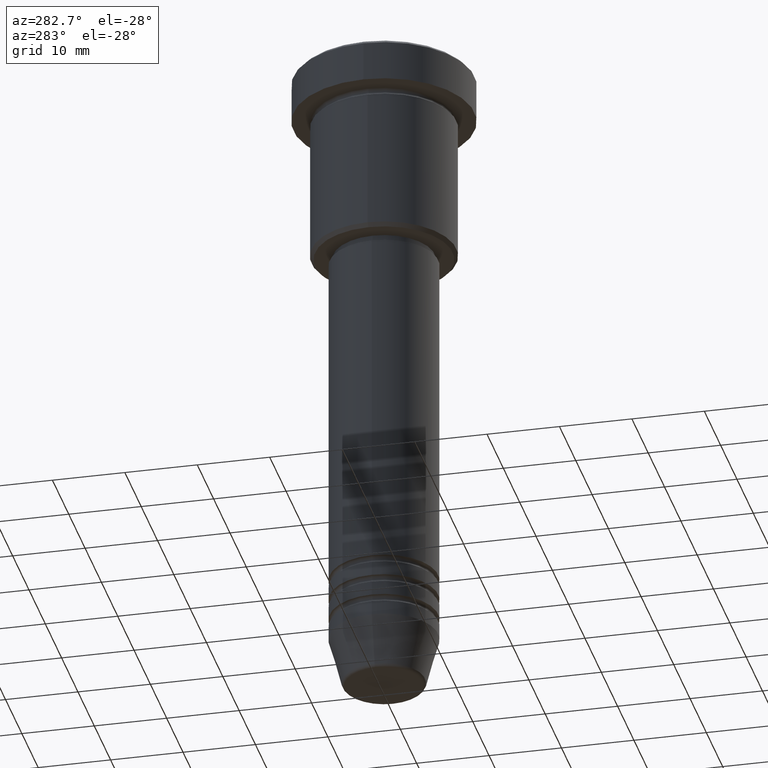
[diagram: clean part render]
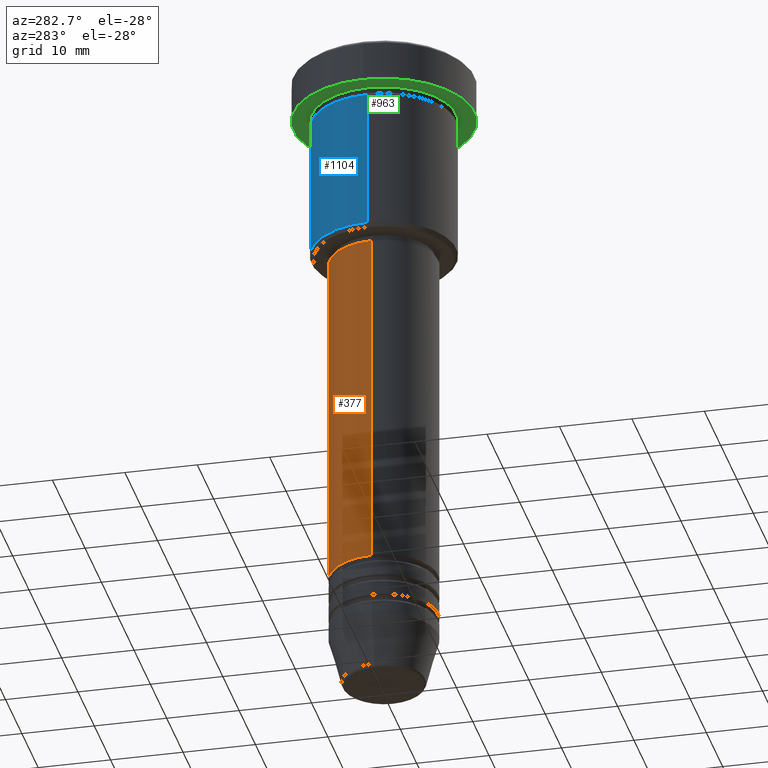
[diagram: same view with three faces highlighted in distinct colors, each labeled with its STEP entity id]
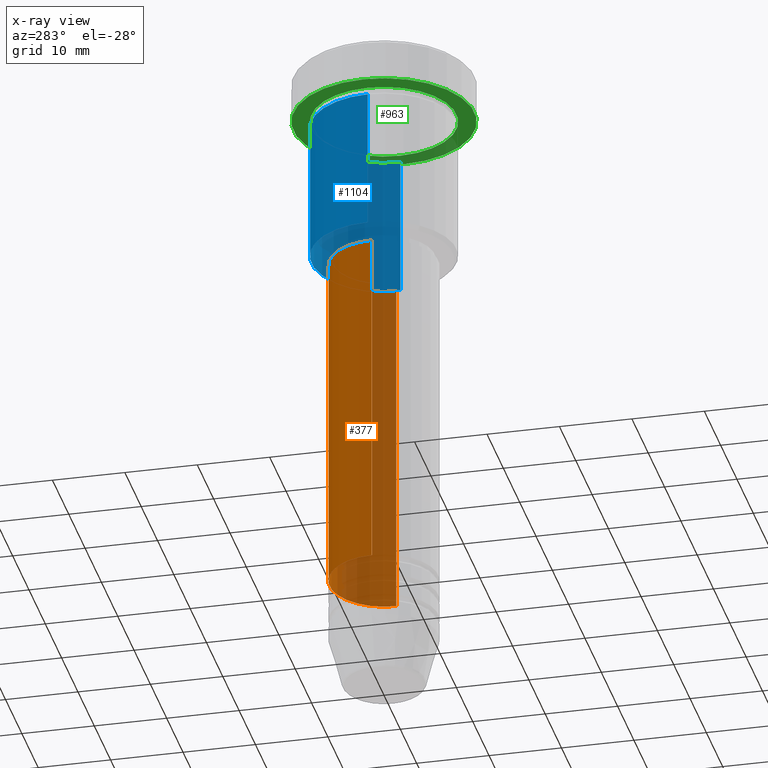
[diagram: x-ray of the same camera — body ghosted, the three highlighted faces saturated]
A machine part, auxiliary view with three faces highlighted in distinct colors.
The next image is the same camera in x-ray (body ghosted, the three faces saturated) — at least one of them is partly hidden behind the body in this view.
Their STEP definitions:

[orange] entity #377 — the highlighted cylindrical surface (partial cylindrical patch) has radius 7.5 mm, axis along (-0, -0, 1).
#171 = DIRECTION ( 'NONE',  ( -0.000000000000000000, -0.000000000000000000, 1.000000000000000000 ) ) ;
#173 = CARTESIAN_POINT ( 'NONE',  ( 7.500000000000000000, 0.000000000000000000, -27.99999999999996803 ) ) ;
#203 = AXIS2_PLACEMENT_3D ( 'NONE', #624, #171, #277 ) ;
#207 = DIRECTION ( 'NONE',  ( -0.000000000000000000, -0.000000000000000000, 1.000000000000000000 ) ) ;
#250 = ORIENTED_EDGE ( 'NONE', *, *, #685, .T. ) ;
#277 = DIRECTION ( 'NONE',  ( 1.000000000000000000, 0.000000000000000000, 0.000000000000000000 ) ) ;
#316 = DIRECTION ( 'NONE',  ( -0.000000000000000000, -0.000000000000000000, 1.000000000000000000 ) ) ;
#351 = VECTOR ( 'NONE', #975, 1000.000000000000000 ) ;
#360 = ORIENTED_EDGE ( 'NONE', *, *, #850, .T. ) ;
#361 = CYLINDRICAL_SURFACE ( 'NONE', #203, 7.500000000000000000 ) ;
#377 = ADVANCED_FACE ( 'NONE', ( #906 ), #361, .T. ) ;
#408 = CARTESIAN_POINT ( 'NONE',  ( 0.000000000000000000, 0.000000000000000000, -75.99999999999997158 ) ) ;
#447 = AXIS2_PLACEMENT_3D ( 'NONE', #734, #207, #811 ) ;
#476 = LINE ( 'NONE', #1098, #969 ) ;
#497 = LINE ( 'NONE', #572, #351 ) ;
#503 = DIRECTION ( 'NONE',  ( 1.000000000000000000, 0.000000000000000000, 0.000000000000000000 ) ) ;
#572 = CARTESIAN_POINT ( 'NONE',  ( -7.500000000000000000, 9.184850993605147944E-16, 0.000000000000000000 ) ) ;
#582 = VERTEX_POINT ( 'NONE', #659 ) ;
#623 = EDGE_CURVE ( 'NONE', #683, #988, #476, .T. ) ;
#624 = CARTESIAN_POINT ( 'NONE',  ( 0.000000000000000000, 0.000000000000000000, 0.000000000000000000 ) ) ;
#629 = CIRCLE ( 'NONE', #1150, 7.500000000000000000 ) ;
#631 = CIRCLE ( 'NONE', #447, 7.500000000000000000 ) ;
#659 = CARTESIAN_POINT ( 'NONE',  ( -7.500000000000000000, 9.184850993605147944E-16, -27.99999999999996803 ) ) ;
#683 = VERTEX_POINT ( 'NONE', #960 ) ;
#685 = EDGE_CURVE ( 'NONE', #683, #1024, #629, .T. ) ;
#734 = CARTESIAN_POINT ( 'NONE',  ( 0.000000000000000000, 0.000000000000000000, -27.99999999999996803 ) ) ;
#811 = DIRECTION ( 'NONE',  ( 1.000000000000000000, 0.000000000000000000, 0.000000000000000000 ) ) ;
#814 = CARTESIAN_POINT ( 'NONE',  ( -7.500000000000000000, 9.184850993605147944E-16, -75.99999999999997158 ) ) ;
#831 = ORIENTED_EDGE ( 'NONE', *, *, #1139, .F. ) ;
#836 = DIRECTION ( 'NONE',  ( -0.000000000000000000, -0.000000000000000000, 1.000000000000000000 ) ) ;
#850 = EDGE_CURVE ( 'NONE', #1024, #582, #497, .T. ) ;
#906 = FACE_OUTER_BOUND ( 'NONE', #972, .T. ) ;
#960 = CARTESIAN_POINT ( 'NONE',  ( 7.500000000000000000, 0.000000000000000000, -75.99999999999997158 ) ) ;
#969 = VECTOR ( 'NONE', #836, 1000.000000000000000 ) ;
#972 = EDGE_LOOP ( 'NONE', ( #250, #360, #831, #1119 ) ) ;
#975 = DIRECTION ( 'NONE',  ( -0.000000000000000000, -0.000000000000000000, 1.000000000000000000 ) ) ;
#988 = VERTEX_POINT ( 'NONE', #173 ) ;
#1024 = VERTEX_POINT ( 'NONE', #814 ) ;
#1098 = CARTESIAN_POINT ( 'NONE',  ( 7.500000000000000000, 0.000000000000000000, 0.000000000000000000 ) ) ;
#1119 = ORIENTED_EDGE ( 'NONE', *, *, #623, .F. ) ;
#1139 = EDGE_CURVE ( 'NONE', #988, #582, #631, .T. ) ;
#1150 = AXIS2_PLACEMENT_3D ( 'NONE', #408, #316, #503 ) ;

[blue] entity #1104 — the highlighted cylindrical surface (partial cylindrical patch) has radius 10 mm, axis along (-0, -0, 1).
#55 = DIRECTION ( 'NONE',  ( -0.000000000000000000, -0.000000000000000000, 1.000000000000000000 ) ) ;
#85 = DIRECTION ( 'NONE',  ( 1.000000000000000000, 0.000000000000000000, 0.000000000000000000 ) ) ;
#109 = DIRECTION ( 'NONE',  ( 1.000000000000000000, 0.000000000000000000, 0.000000000000000000 ) ) ;
#161 = EDGE_CURVE ( 'NONE', #229, #1160, #788, .T. ) ;
#205 = AXIS2_PLACEMENT_3D ( 'NONE', #638, #1170, #85 ) ;
#228 = DIRECTION ( 'NONE',  ( -0.000000000000000000, -0.000000000000000000, 1.000000000000000000 ) ) ;
#229 = VERTEX_POINT ( 'NONE', #231 ) ;
#231 = CARTESIAN_POINT ( 'NONE',  ( 10.00000000000000000, 0.000000000000000000, -26.49999999999996803 ) ) ;
#251 = EDGE_CURVE ( 'NONE', #229, #795, #485, .T. ) ;
#275 = VECTOR ( 'NONE', #521, 1000.000000000000000 ) ;
#299 = ORIENTED_EDGE ( 'NONE', *, *, #251, .T. ) ;
#305 = ORIENTED_EDGE ( 'NONE', *, *, #991, .F. ) ;
#324 = CARTESIAN_POINT ( 'NONE',  ( -10.00000000000000000, 1.224646799147353256E-15, 0.000000000000000000 ) ) ;
#337 = AXIS2_PLACEMENT_3D ( 'NONE', #1052, #55, #792 ) ;
#382 = FACE_OUTER_BOUND ( 'NONE', #810, .T. ) ;
#385 = ORIENTED_EDGE ( 'NONE', *, *, #741, .T. ) ;
#430 = VECTOR ( 'NONE', #228, 1000.000000000000000 ) ;
#485 = CIRCLE ( 'NONE', #337, 10.00000000000000000 ) ;
#521 = DIRECTION ( 'NONE',  ( -0.000000000000000000, -0.000000000000000000, 1.000000000000000000 ) ) ;
#544 = CIRCLE ( 'NONE', #205, 10.00000000000000000 ) ;
#560 = CYLINDRICAL_SURFACE ( 'NONE', #1171, 10.00000000000000000 ) ;
#619 = VERTEX_POINT ( 'NONE', #736 ) ;
#638 = CARTESIAN_POINT ( 'NONE',  ( 0.000000000000000000, 0.000000000000000000, -6.999999999999996447 ) ) ;
#670 = CARTESIAN_POINT ( 'NONE',  ( -10.00000000000000000, 1.224646799147353256E-15, -26.49999999999996803 ) ) ;
#736 = CARTESIAN_POINT ( 'NONE',  ( -10.00000000000000000, 1.224646799147353256E-15, -6.999999999999996447 ) ) ;
#741 = EDGE_CURVE ( 'NONE', #795, #619, #1133, .T. ) ;
#788 = LINE ( 'NONE', #976, #275 ) ;
#792 = DIRECTION ( 'NONE',  ( -1.000000000000000000, 0.000000000000000000, 0.000000000000000000 ) ) ;
#795 = VERTEX_POINT ( 'NONE', #670 ) ;
#810 = EDGE_LOOP ( 'NONE', ( #299, #385, #305, #994 ) ) ;
#835 = CARTESIAN_POINT ( 'NONE',  ( 10.00000000000000000, 0.000000000000000000, -6.999999999999996447 ) ) ;
#837 = CARTESIAN_POINT ( 'NONE',  ( 0.000000000000000000, 0.000000000000000000, 0.000000000000000000 ) ) ;
#926 = DIRECTION ( 'NONE',  ( -0.000000000000000000, -0.000000000000000000, 1.000000000000000000 ) ) ;
#976 = CARTESIAN_POINT ( 'NONE',  ( 10.00000000000000000, 0.000000000000000000, 0.000000000000000000 ) ) ;
#991 = EDGE_CURVE ( 'NONE', #1160, #619, #544, .T. ) ;
#994 = ORIENTED_EDGE ( 'NONE', *, *, #161, .F. ) ;
#1052 = CARTESIAN_POINT ( 'NONE',  ( 0.000000000000000000, 0.000000000000000000, -26.49999999999996803 ) ) ;
#1104 = ADVANCED_FACE ( 'NONE', ( #382 ), #560, .T. ) ;
#1133 = LINE ( 'NONE', #324, #430 ) ;
#1160 = VERTEX_POINT ( 'NONE', #835 ) ;
#1170 = DIRECTION ( 'NONE',  ( -0.000000000000000000, -0.000000000000000000, 1.000000000000000000 ) ) ;
#1171 = AXIS2_PLACEMENT_3D ( 'NONE', #837, #926, #109 ) ;

[green] entity #963 — the highlighted planar face has unit normal (0, 0, -1).
#4 = CIRCLE ( 'NONE', #48, 10.00000000000000000 ) ;
#48 = AXIS2_PLACEMENT_3D ( 'NONE', #243, #875, #962 ) ;
#88 = ORIENTED_EDGE ( 'NONE', *, *, #874, .F. ) ;
#90 = DIRECTION ( 'NONE',  ( 0.000000000000000000, 0.000000000000000000, -1.000000000000000000 ) ) ;
#95 = CARTESIAN_POINT ( 'NONE',  ( 10.00000000000000000, 1.224646799147353256E-15, -5.999999999999996447 ) ) ;
#96 = FACE_BOUND ( 'NONE', #1121, .T. ) ;
#142 = ORIENTED_EDGE ( 'NONE', *, *, #308, .T. ) ;
#184 = AXIS2_PLACEMENT_3D ( 'NONE', #354, #90, #621 ) ;
#243 = CARTESIAN_POINT ( 'NONE',  ( 0.000000000000000000, 0.000000000000000000, -5.999999999999996447 ) ) ;
#267 = FACE_OUTER_BOUND ( 'NONE', #1066, .T. ) ;
#288 = VERTEX_POINT ( 'NONE', #523 ) ;
#308 = EDGE_CURVE ( 'NONE', #857, #407, #4, .T. ) ;
#354 = CARTESIAN_POINT ( 'NONE',  ( 0.000000000000000000, 12.50000000000000000, -5.999999999999996447 ) ) ;
#366 = CIRCLE ( 'NONE', #1037, 12.50000000000000000 ) ;
#383 = EDGE_CURVE ( 'NONE', #1010, #288, #366, .T. ) ;
#407 = VERTEX_POINT ( 'NONE', #95 ) ;
#422 = CARTESIAN_POINT ( 'NONE',  ( 0.000000000000000000, 0.000000000000000000, -5.999999999999996447 ) ) ;
#444 = CIRCLE ( 'NONE', #1105, 10.00000000000000000 ) ;
#452 = ORIENTED_EDGE ( 'NONE', *, *, #383, .F. ) ;
#466 = EDGE_CURVE ( 'NONE', #407, #857, #444, .T. ) ;
#508 = CIRCLE ( 'NONE', #648, 12.50000000000000000 ) ;
#523 = CARTESIAN_POINT ( 'NONE',  ( -12.50000000000000000, 1.530808498934191521E-15, -5.999999999999996447 ) ) ;
#621 = DIRECTION ( 'NONE',  ( -1.000000000000000000, 0.000000000000000000, -0.000000000000000000 ) ) ;
#632 = CARTESIAN_POINT ( 'NONE',  ( 0.000000000000000000, 0.000000000000000000, -5.999999999999996447 ) ) ;
#648 = AXIS2_PLACEMENT_3D ( 'NONE', #422, #1145, #878 ) ;
#729 = DIRECTION ( 'NONE',  ( -1.000000000000000000, 0.000000000000000000, 0.000000000000000000 ) ) ;
#857 = VERTEX_POINT ( 'NONE', #1059 ) ;
#874 = EDGE_CURVE ( 'NONE', #288, #1010, #508, .T. ) ;
#875 = DIRECTION ( 'NONE',  ( -0.000000000000000000, -0.000000000000000000, 1.000000000000000000 ) ) ;
#878 = DIRECTION ( 'NONE',  ( 1.000000000000000000, 0.000000000000000000, 0.000000000000000000 ) ) ;
#962 = DIRECTION ( 'NONE',  ( -1.000000000000000000, 0.000000000000000000, 0.000000000000000000 ) ) ;
#963 = ADVANCED_FACE ( 'NONE', ( #96, #267 ), #1095, .T. ) ;
#1010 = VERTEX_POINT ( 'NONE', #1087 ) ;
#1037 = AXIS2_PLACEMENT_3D ( 'NONE', #632, #1085, #1168 ) ;
#1059 = CARTESIAN_POINT ( 'NONE',  ( -10.00000000000000000, 0.000000000000000000, -5.999999999999996447 ) ) ;
#1066 = EDGE_LOOP ( 'NONE', ( #452, #88 ) ) ;
#1073 = DIRECTION ( 'NONE',  ( -0.000000000000000000, -0.000000000000000000, 1.000000000000000000 ) ) ;
#1085 = DIRECTION ( 'NONE',  ( -0.000000000000000000, -0.000000000000000000, 1.000000000000000000 ) ) ;
#1087 = CARTESIAN_POINT ( 'NONE',  ( 12.50000000000000000, 0.000000000000000000, -5.999999999999996447 ) ) ;
#1093 = ORIENTED_EDGE ( 'NONE', *, *, #466, .T. ) ;
#1095 = PLANE ( 'NONE',  #184 ) ;
#1105 = AXIS2_PLACEMENT_3D ( 'NONE', #1174, #1073, #729 ) ;
#1121 = EDGE_LOOP ( 'NONE', ( #142, #1093 ) ) ;
#1145 = DIRECTION ( 'NONE',  ( -0.000000000000000000, -0.000000000000000000, 1.000000000000000000 ) ) ;
#1168 = DIRECTION ( 'NONE',  ( 1.000000000000000000, 0.000000000000000000, 0.000000000000000000 ) ) ;
#1174 = CARTESIAN_POINT ( 'NONE',  ( 0.000000000000000000, 0.000000000000000000, -5.999999999999996447 ) ) ;